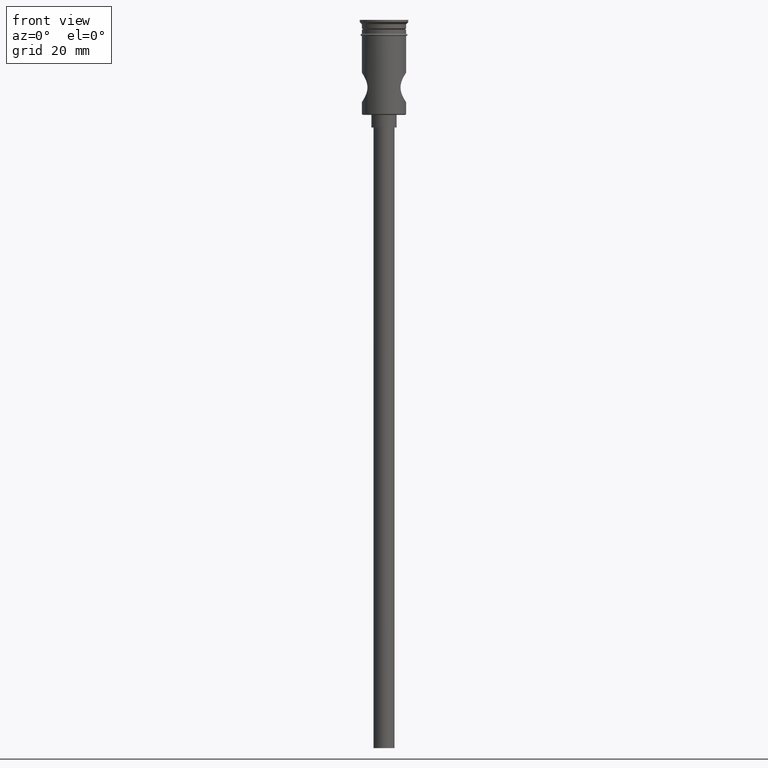
[diagram: clean part render]
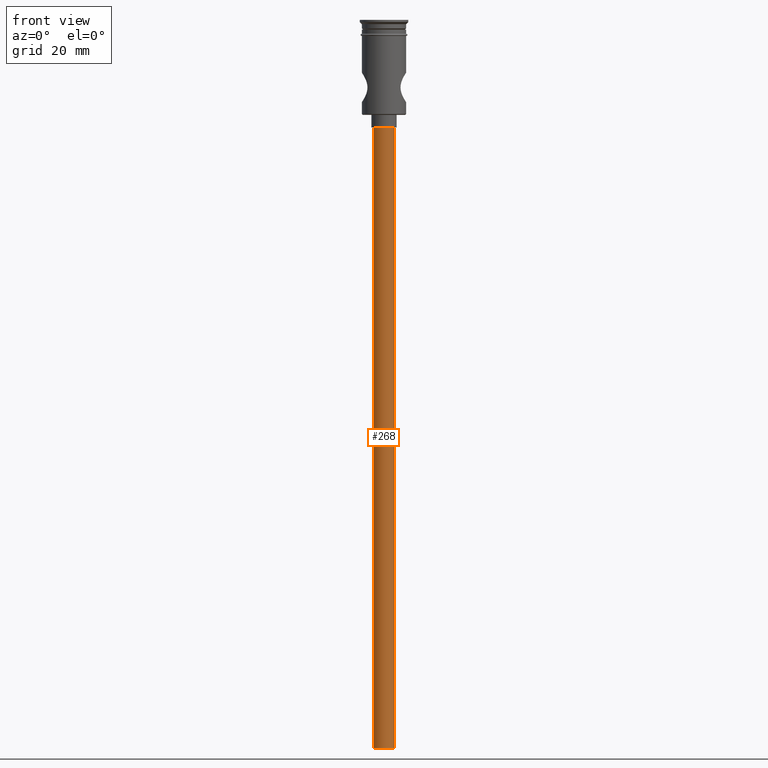
[diagram: same view with one face highlighted and labeled with its STEP entity id]
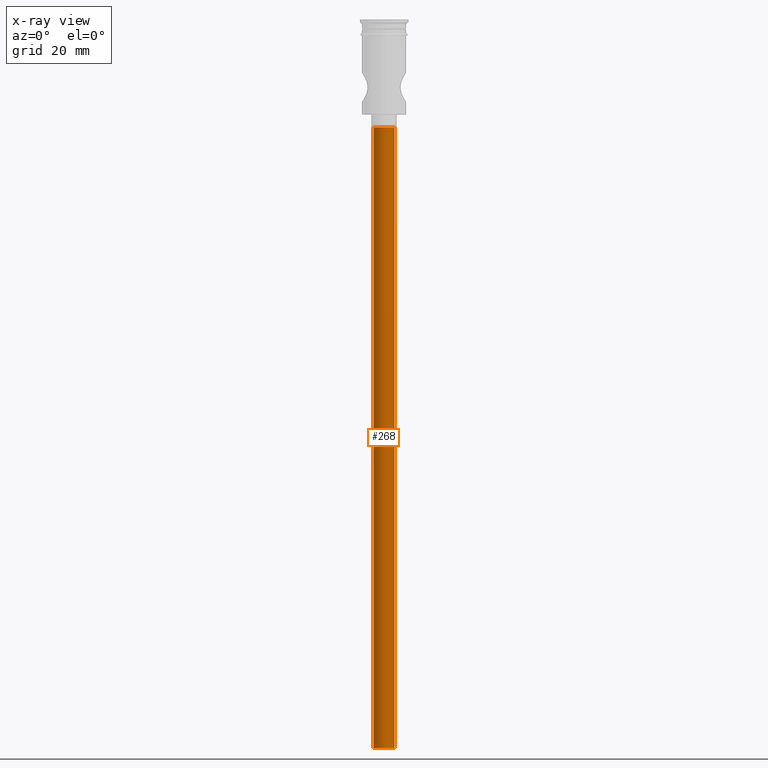
[diagram: x-ray of the same camera — body ghosted, the highlighted face saturated]
A machine part, front view. The second image highlights one B-rep face of the part: STEP entity #268.
The next image is the same camera in x-ray: the body ghosted, the highlighted face saturated — about 0% of this face is hidden behind the body in this view.
In plain terms, the highlighted cylindrical surface (edge-blend (fillet) strip) has radius 2.5 mm, axis along (-0, -0, 1).
Its self-contained STEP definition (entity closure, byte-faithful):
#117 = EDGE_CURVE ( 'NONE', #1456, #1434, #264, .T. ) ;
#165 = EDGE_LOOP ( 'NONE', ( #843, #1055, #838, #1139 ) ) ;
#176 = EDGE_CURVE ( 'NONE', #1434, #1095, #226, .T. ) ;
#219 = CARTESIAN_POINT ( 'NONE',  ( -2.500000000000000000, 3.061616997868383141E-16, -25.50000000000000000 ) ) ;
#226 = CIRCLE ( 'NONE', #1167, 2.500000000000000000 ) ;
#264 = LINE ( 'NONE', #482, #932 ) ;
#268 = ADVANCED_FACE ( 'NONE', ( #633 ), #411, .T. ) ;
#276 = VECTOR ( 'NONE', #999, 1000.000000000000000 ) ;
#284 = DIRECTION ( 'NONE',  ( 1.000000000000000000, 0.000000000000000000, 0.000000000000000000 ) ) ;
#411 = CYLINDRICAL_SURFACE ( 'NONE', #659, 2.500000000000000000 ) ;
#473 = EDGE_CURVE ( 'NONE', #1456, #1122, #1265, .T. ) ;
#482 = CARTESIAN_POINT ( 'NONE',  ( 2.500000000000000000, 0.000000000000000000, -172.5000000000000000 ) ) ;
#492 = DIRECTION ( 'NONE',  ( -1.000000000000000000, 0.000000000000000000, 0.000000000000000000 ) ) ;
#497 = CARTESIAN_POINT ( 'NONE',  ( 0.000000000000000000, 0.000000000000000000, -172.5000000000000000 ) ) ;
#632 = AXIS2_PLACEMENT_3D ( 'NONE', #497, #924, #1282 ) ;
#633 = FACE_OUTER_BOUND ( 'NONE', #165, .T. ) ;
#659 = AXIS2_PLACEMENT_3D ( 'NONE', #722, #1317, #284 ) ;
#670 = LINE ( 'NONE', #1126, #276 ) ;
#693 = CARTESIAN_POINT ( 'NONE',  ( 0.000000000000000000, 0.000000000000000000, -25.50000000000000000 ) ) ;
#707 = DIRECTION ( 'NONE',  ( 0.000000000000000000, 0.000000000000000000, -1.000000000000000000 ) ) ;
#722 = CARTESIAN_POINT ( 'NONE',  ( 0.000000000000000000, 0.000000000000000000, -172.5000000000000000 ) ) ;
#758 = CARTESIAN_POINT ( 'NONE',  ( 2.500000000000000000, 0.000000000000000000, -25.50000000000000000 ) ) ;
#831 = CARTESIAN_POINT ( 'NONE',  ( 2.500000000000000000, 0.000000000000000000, -172.5000000000000000 ) ) ;
#838 = ORIENTED_EDGE ( 'NONE', *, *, #117, .T. ) ;
#843 = ORIENTED_EDGE ( 'NONE', *, *, #1223, .F. ) ;
#924 = DIRECTION ( 'NONE',  ( 0.000000000000000000, 0.000000000000000000, -1.000000000000000000 ) ) ;
#932 = VECTOR ( 'NONE', #1258, 1000.000000000000000 ) ;
#999 = DIRECTION ( 'NONE',  ( -0.000000000000000000, -0.000000000000000000, 1.000000000000000000 ) ) ;
#1055 = ORIENTED_EDGE ( 'NONE', *, *, #473, .F. ) ;
#1095 = VERTEX_POINT ( 'NONE', #219 ) ;
#1122 = VERTEX_POINT ( 'NONE', #1248 ) ;
#1126 = CARTESIAN_POINT ( 'NONE',  ( -2.500000000000000000, 3.061616997868383141E-16, -172.5000000000000000 ) ) ;
#1139 = ORIENTED_EDGE ( 'NONE', *, *, #176, .T. ) ;
#1167 = AXIS2_PLACEMENT_3D ( 'NONE', #693, #707, #492 ) ;
#1223 = EDGE_CURVE ( 'NONE', #1122, #1095, #670, .T. ) ;
#1248 = CARTESIAN_POINT ( 'NONE',  ( -2.500000000000000000, 3.061616997868383141E-16, -172.5000000000000000 ) ) ;
#1258 = DIRECTION ( 'NONE',  ( -0.000000000000000000, -0.000000000000000000, 1.000000000000000000 ) ) ;
#1265 = CIRCLE ( 'NONE', #632, 2.500000000000000000 ) ;
#1282 = DIRECTION ( 'NONE',  ( -1.000000000000000000, 0.000000000000000000, 0.000000000000000000 ) ) ;
#1317 = DIRECTION ( 'NONE',  ( -0.000000000000000000, -0.000000000000000000, 1.000000000000000000 ) ) ;
#1434 = VERTEX_POINT ( 'NONE', #758 ) ;
#1456 = VERTEX_POINT ( 'NONE', #831 ) ;